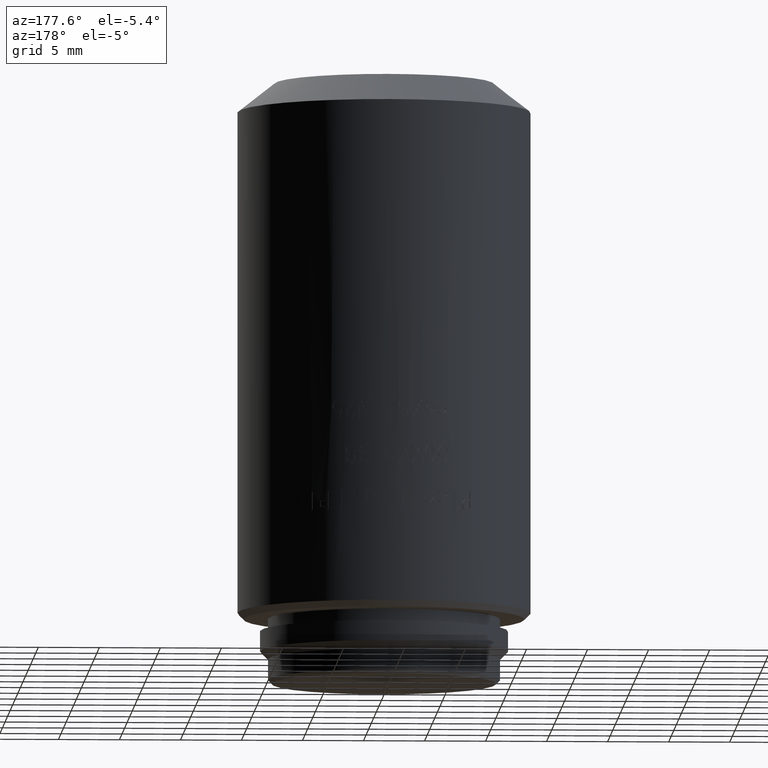
[diagram: clean part render]
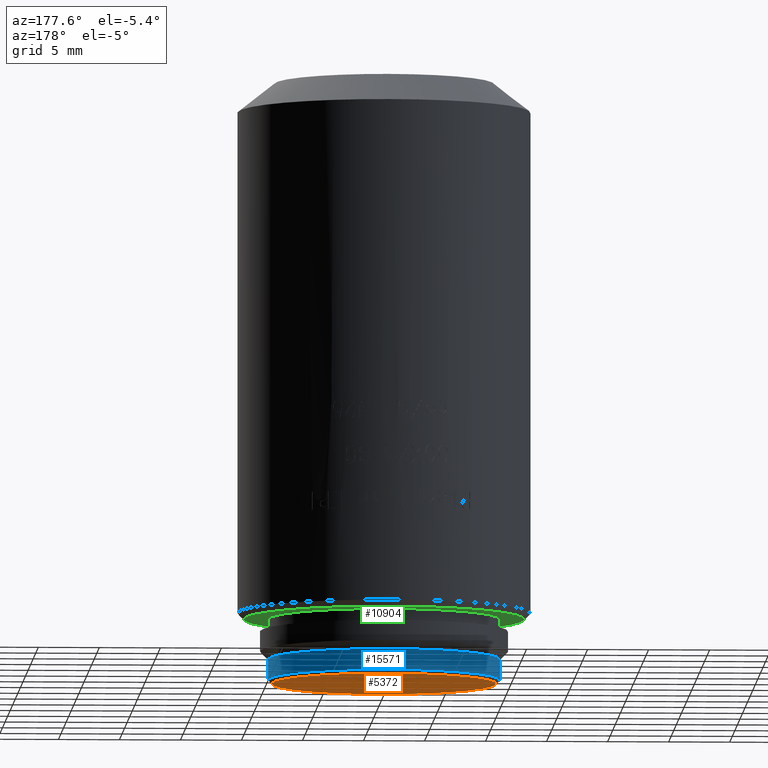
[diagram: same view with three faces highlighted in distinct colors, each labeled with its STEP entity id]
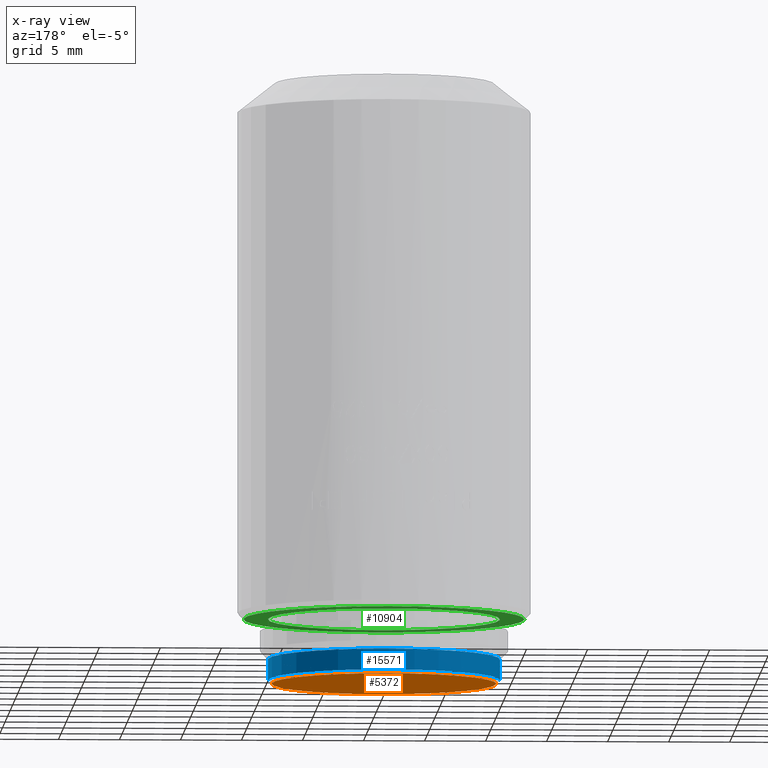
[diagram: x-ray of the same camera — body ghosted, the three highlighted faces saturated]
A machine part, auxiliary view with three faces highlighted in distinct colors.
The next image is the same camera in x-ray (body ghosted, the three faces saturated) — at least one of them is partly hidden behind the body in this view.
Their STEP definitions:

[orange] entity #5372 — the highlighted planar face has unit normal (0, 0, 1).
#47 = CIRCLE ( 'NONE', #2489, 9.199999999999999289 ) ;
#1315 = PLANE ( 'NONE',  #14085 ) ;
#2489 = AXIS2_PLACEMENT_3D ( 'NONE', #5124, #12898, #22451 ) ;
#5124 = CARTESIAN_POINT ( 'NONE',  ( 0.000000000000000000, 0.000000000000000000, 0.000000000000000000 ) ) ;
#5372 = ADVANCED_FACE ( 'NONE', ( #23066 ), #1315, .F. ) ;
#5741 = DIRECTION ( 'NONE',  ( 0.000000000000000000, 0.000000000000000000, 1.000000000000000000 ) ) ;
#6619 = EDGE_CURVE ( 'NONE', #20562, #18139, #18010, .T. ) ;
#6664 = CARTESIAN_POINT ( 'NONE',  ( -9.199999999999999289, 1.145044757202775647E-15, 0.000000000000000000 ) ) ;
#10297 = AXIS2_PLACEMENT_3D ( 'NONE', #19688, #13714, #15370 ) ;
#12898 = DIRECTION ( 'NONE',  ( 0.000000000000000000, 0.000000000000000000, -1.000000000000000000 ) ) ;
#13029 = CARTESIAN_POINT ( 'NONE',  ( 0.000000000000000000, 0.000000000000000000, 0.000000000000000000 ) ) ;
#13714 = DIRECTION ( 'NONE',  ( 0.000000000000000000, 0.000000000000000000, -1.000000000000000000 ) ) ;
#13937 = EDGE_LOOP ( 'NONE', ( #23654, #23611 ) ) ;
#14085 = AXIS2_PLACEMENT_3D ( 'NONE', #13029, #5741, #16975 ) ;
#15370 = DIRECTION ( 'NONE',  ( 1.000000000000000000, 0.000000000000000000, 0.000000000000000000 ) ) ;
#16278 = EDGE_CURVE ( 'NONE', #18139, #20562, #47, .T. ) ;
#16975 = DIRECTION ( 'NONE',  ( 1.000000000000000000, 0.000000000000000000, 0.000000000000000000 ) ) ;
#18010 = CIRCLE ( 'NONE', #10297, 9.199999999999999289 ) ;
#18139 = VERTEX_POINT ( 'NONE', #22004 ) ;
#19688 = CARTESIAN_POINT ( 'NONE',  ( 0.000000000000000000, 0.000000000000000000, 0.000000000000000000 ) ) ;
#20562 = VERTEX_POINT ( 'NONE', #6664 ) ;
#22004 = CARTESIAN_POINT ( 'NONE',  ( 9.199999999999999289, 0.000000000000000000, 0.000000000000000000 ) ) ;
#22451 = DIRECTION ( 'NONE',  ( 1.000000000000000000, 0.000000000000000000, 0.000000000000000000 ) ) ;
#23066 = FACE_OUTER_BOUND ( 'NONE', #13937, .T. ) ;
#23611 = ORIENTED_EDGE ( 'NONE', *, *, #6619, .T. ) ;
#23654 = ORIENTED_EDGE ( 'NONE', *, *, #16278, .T. ) ;

[blue] entity #15571 — the highlighted cylindrical surface (partial cylindrical patch) has radius 9.5 mm, axis along (0, 0, -1).
#43 = CARTESIAN_POINT ( 'NONE',  ( 9.500000000000007105, 0.000000000000000000, 0.3000000000000069833 ) ) ;
#372 = CARTESIAN_POINT ( 'NONE',  ( 0.000000000000000000, 0.000000000000000000, 0.3000000000000069833 ) ) ;
#543 = ORIENTED_EDGE ( 'NONE', *, *, #13862, .T. ) ;
#992 = CARTESIAN_POINT ( 'NONE',  ( 9.500000000000000000, 1.163414459189985485E-15, 2.000000000000000000 ) ) ;
#2371 = CARTESIAN_POINT ( 'NONE',  ( 9.500000000000000000, 1.163414459189985485E-15, 2.000000000000000000 ) ) ;
#2575 = LINE ( 'NONE', #8571, #23133 ) ;
#5186 = DIRECTION ( 'NONE',  ( 0.000000000000000000, 0.000000000000000000, -1.000000000000000000 ) ) ;
#6909 = AXIS2_PLACEMENT_3D ( 'NONE', #372, #16425, #16552 ) ;
#7393 = EDGE_LOOP ( 'NONE', ( #21700, #19860, #543, #17595 ) ) ;
#7405 = CIRCLE ( 'NONE', #24881, 9.500000000000000000 ) ;
#8571 = CARTESIAN_POINT ( 'NONE',  ( -9.500000000000000000, 0.000000000000000000, 2.000000000000000000 ) ) ;
#10356 = DIRECTION ( 'NONE',  ( 0.000000000000000000, 0.000000000000000000, -1.000000000000000000 ) ) ;
#10772 = EDGE_CURVE ( 'NONE', #21489, #22511, #7405, .T. ) ;
#11052 = AXIS2_PLACEMENT_3D ( 'NONE', #24704, #15149, #17185 ) ;
#11627 = VERTEX_POINT ( 'NONE', #15616 ) ;
#11868 = VECTOR ( 'NONE', #5186, 1000.000000000000000 ) ;
#13012 = CIRCLE ( 'NONE', #6909, 9.500000000000000000 ) ;
#13794 = CARTESIAN_POINT ( 'NONE',  ( 0.000000000000000000, 0.000000000000000000, 2.000000000000000000 ) ) ;
#13862 = EDGE_CURVE ( 'NONE', #25029, #11627, #13012, .T. ) ;
#14557 = EDGE_CURVE ( 'NONE', #22511, #25029, #16789, .T. ) ;
#15149 = DIRECTION ( 'NONE',  ( 0.000000000000000000, 0.000000000000000000, -1.000000000000000000 ) ) ;
#15571 = ADVANCED_FACE ( 'NONE', ( #24946 ), #19091, .T. ) ;
#15616 = CARTESIAN_POINT ( 'NONE',  ( -9.500000000000007105, 1.163414459189986274E-15, 0.3000000000000069833 ) ) ;
#16425 = DIRECTION ( 'NONE',  ( 0.000000000000000000, 0.000000000000000000, 1.000000000000000000 ) ) ;
#16552 = DIRECTION ( 'NONE',  ( 1.000000000000000000, 0.000000000000000000, 0.000000000000000000 ) ) ;
#16789 = LINE ( 'NONE', #992, #11868 ) ;
#17185 = DIRECTION ( 'NONE',  ( -1.000000000000000000, 0.000000000000000000, 0.000000000000000000 ) ) ;
#17595 = ORIENTED_EDGE ( 'NONE', *, *, #20423, .F. ) ;
#17734 = DIRECTION ( 'NONE',  ( -1.000000000000000000, 0.000000000000000000, 0.000000000000000000 ) ) ;
#18880 = CARTESIAN_POINT ( 'NONE',  ( -9.500000000000000000, 0.000000000000000000, 2.000000000000000000 ) ) ;
#19091 = CYLINDRICAL_SURFACE ( 'NONE', #11052, 9.500000000000000000 ) ;
#19860 = ORIENTED_EDGE ( 'NONE', *, *, #14557, .T. ) ;
#20423 = EDGE_CURVE ( 'NONE', #21489, #11627, #2575, .T. ) ;
#21175 = DIRECTION ( 'NONE',  ( 0.000000000000000000, 0.000000000000000000, -1.000000000000000000 ) ) ;
#21489 = VERTEX_POINT ( 'NONE', #18880 ) ;
#21700 = ORIENTED_EDGE ( 'NONE', *, *, #10772, .T. ) ;
#22511 = VERTEX_POINT ( 'NONE', #2371 ) ;
#23133 = VECTOR ( 'NONE', #10356, 1000.000000000000000 ) ;
#24704 = CARTESIAN_POINT ( 'NONE',  ( 0.000000000000000000, 0.000000000000000000, 2.000000000000000000 ) ) ;
#24881 = AXIS2_PLACEMENT_3D ( 'NONE', #13794, #21175, #17734 ) ;
#24946 = FACE_OUTER_BOUND ( 'NONE', #7393, .T. ) ;
#25029 = VERTEX_POINT ( 'NONE', #43 ) ;

[green] entity #10904 — the highlighted planar face has unit normal (0, 0, -1).
#1324 = AXIS2_PLACEMENT_3D ( 'NONE', #13545, #12005, #21552 ) ;
#4129 = DIRECTION ( 'NONE',  ( -1.000000000000000000, 0.000000000000000000, 0.000000000000000000 ) ) ;
#4255 = CARTESIAN_POINT ( 'NONE',  ( 0.000000000000000000, 0.000000000000000000, 5.299999999999999822 ) ) ;
#5419 = CARTESIAN_POINT ( 'NONE',  ( 0.000000000000000000, 0.000000000000000000, 5.299999999999999822 ) ) ;
#5827 = EDGE_CURVE ( 'NONE', #17563, #15945, #12838, .T. ) ;
#6016 = FACE_BOUND ( 'NONE', #8814, .T. ) ;
#6314 = CIRCLE ( 'NONE', #24214, 11.50000000000000000 ) ;
#6725 = DIRECTION ( 'NONE',  ( 0.000000000000000000, 0.000000000000000000, -1.000000000000000000 ) ) ;
#7807 = PLANE ( 'NONE',  #1324 ) ;
#7819 = EDGE_CURVE ( 'NONE', #15945, #17563, #6314, .T. ) ;
#8814 = EDGE_LOOP ( 'NONE', ( #25047, #16561 ) ) ;
#10107 = CARTESIAN_POINT ( 'NONE',  ( 0.000000000000000000, 0.000000000000000000, 5.299999999999999822 ) ) ;
#10904 = ADVANCED_FACE ( 'NONE', ( #6016, #19387 ), #7807, .T. ) ;
#11035 = DIRECTION ( 'NONE',  ( 0.000000000000000000, 0.000000000000000000, -1.000000000000000000 ) ) ;
#11386 = AXIS2_PLACEMENT_3D ( 'NONE', #4255, #19800, #4129 ) ;
#11518 = CARTESIAN_POINT ( 'NONE',  ( -9.500000000000000000, 1.163414459189985485E-15, 5.299999999999999822 ) ) ;
#11899 = ORIENTED_EDGE ( 'NONE', *, *, #7819, .T. ) ;
#12005 = DIRECTION ( 'NONE',  ( 0.000000000000000000, 0.000000000000000000, -1.000000000000000000 ) ) ;
#12823 = CARTESIAN_POINT ( 'NONE',  ( 11.50000000000000000, 0.000000000000000000, 5.299999999999999822 ) ) ;
#12838 = CIRCLE ( 'NONE', #22604, 11.50000000000000000 ) ;
#12955 = CARTESIAN_POINT ( 'NONE',  ( -11.50000000000000000, 1.438959988998139963E-15, 5.299999999999999822 ) ) ;
#13023 = CIRCLE ( 'NONE', #11386, 9.500000000000000000 ) ;
#13545 = CARTESIAN_POINT ( 'NONE',  ( 0.000000000000000000, 0.000000000000000000, 5.299999999999999822 ) ) ;
#14238 = CIRCLE ( 'NONE', #21147, 9.500000000000000000 ) ;
#15716 = DIRECTION ( 'NONE',  ( -1.000000000000000000, 0.000000000000000000, 0.000000000000000000 ) ) ;
#15945 = VERTEX_POINT ( 'NONE', #12955 ) ;
#16403 = CARTESIAN_POINT ( 'NONE',  ( 0.000000000000000000, 0.000000000000000000, 5.299999999999999822 ) ) ;
#16561 = ORIENTED_EDGE ( 'NONE', *, *, #18725, .F. ) ;
#17144 = EDGE_LOOP ( 'NONE', ( #22496, #11899 ) ) ;
#17563 = VERTEX_POINT ( 'NONE', #12823 ) ;
#17872 = DIRECTION ( 'NONE',  ( 0.000000000000000000, 0.000000000000000000, -1.000000000000000000 ) ) ;
#18405 = EDGE_CURVE ( 'NONE', #20991, #23076, #14238, .T. ) ;
#18432 = DIRECTION ( 'NONE',  ( -1.000000000000000000, 0.000000000000000000, 0.000000000000000000 ) ) ;
#18549 = DIRECTION ( 'NONE',  ( -1.000000000000000000, 0.000000000000000000, 0.000000000000000000 ) ) ;
#18725 = EDGE_CURVE ( 'NONE', #23076, #20991, #13023, .T. ) ;
#19387 = FACE_OUTER_BOUND ( 'NONE', #17144, .T. ) ;
#19800 = DIRECTION ( 'NONE',  ( 0.000000000000000000, 0.000000000000000000, -1.000000000000000000 ) ) ;
#20991 = VERTEX_POINT ( 'NONE', #22103 ) ;
#21147 = AXIS2_PLACEMENT_3D ( 'NONE', #16403, #6725, #18432 ) ;
#21552 = DIRECTION ( 'NONE',  ( 0.000000000000000000, -1.000000000000000000, 0.000000000000000000 ) ) ;
#22103 = CARTESIAN_POINT ( 'NONE',  ( 9.500000000000000000, 0.000000000000000000, 5.299999999999999822 ) ) ;
#22496 = ORIENTED_EDGE ( 'NONE', *, *, #5827, .T. ) ;
#22604 = AXIS2_PLACEMENT_3D ( 'NONE', #10107, #17872, #15716 ) ;
#23076 = VERTEX_POINT ( 'NONE', #11518 ) ;
#24214 = AXIS2_PLACEMENT_3D ( 'NONE', #5419, #11035, #18549 ) ;
#25047 = ORIENTED_EDGE ( 'NONE', *, *, #18405, .F. ) ;